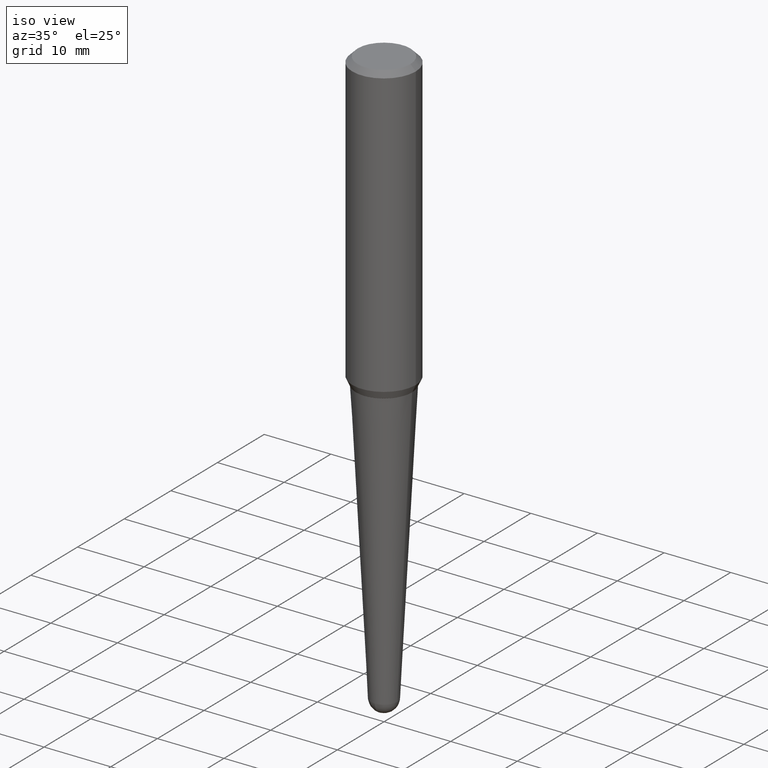
[diagram: clean part render]
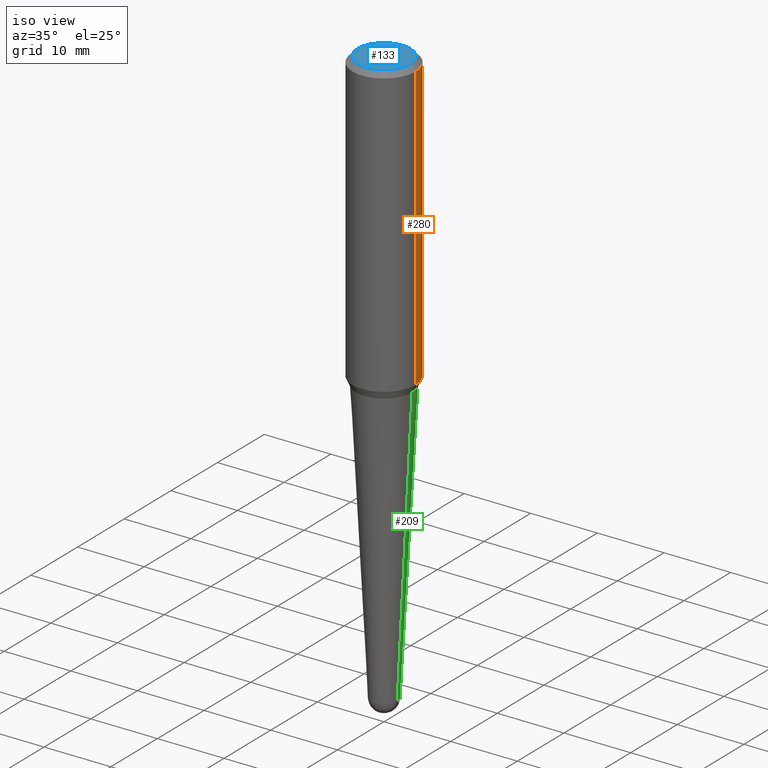
[diagram: same view with three faces highlighted in distinct colors, each labeled with its STEP entity id]
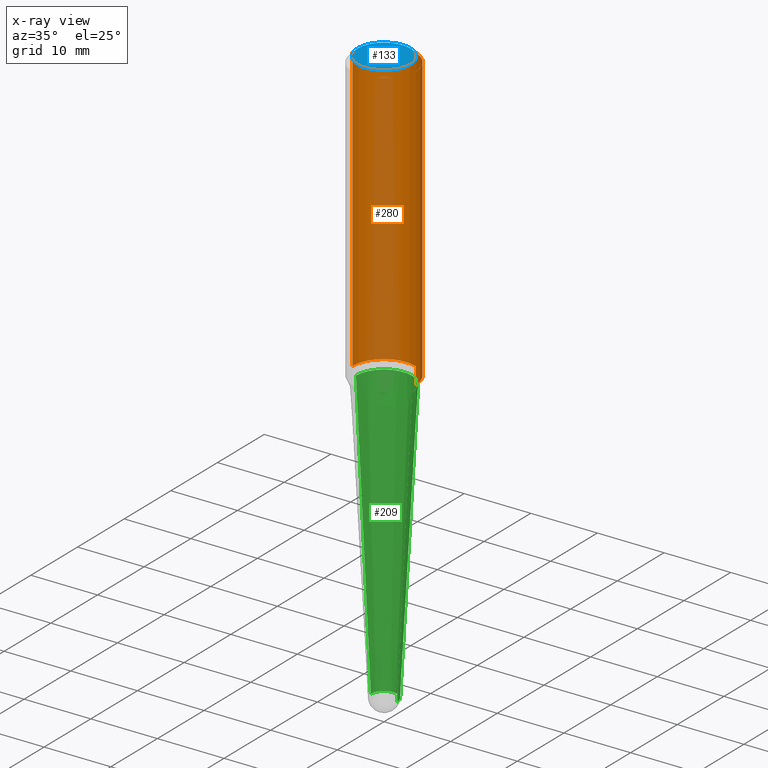
[diagram: x-ray of the same camera — body ghosted, the three highlighted faces saturated]
A machine part, iso view with three faces highlighted in distinct colors.
The next image is the same camera in x-ray (body ghosted, the three faces saturated) — at least one of them is partly hidden behind the body in this view.
Their STEP definitions:

[orange] entity #280 — the highlighted cylindrical surface (partial cylindrical patch) has radius 4.7625 mm, axis along (-0, 0, 1).
#1 = EDGE_LOOP ( 'NONE', ( #457, #412, #369, #55 ) ) ;
#6 = DIRECTION ( 'NONE',  ( -2.445468806185136877E-29, 3.491481338843145188E-15, 1.000000000000000000 ) ) ;
#18 = DIRECTION ( 'NONE',  ( -2.445468806185136597E-29, 3.491481338843145583E-15, 1.000000000000000000 ) ) ;
#19 = CARTESIAN_POINT ( 'NONE',  ( 7.642090019328561499E-31, -1.091087918388484350E-16, -0.03125000000000003469 ) ) ;
#22 = CARTESIAN_POINT ( 'NONE',  ( 4.169935664663897396E-29, -5.953562981677331975E-15, -1.705168209104609645 ) ) ;
#55 = ORIENTED_EDGE ( 'NONE', *, *, #74, .F. ) ;
#63 = VERTEX_POINT ( 'NONE', #114 ) ;
#74 = EDGE_CURVE ( 'NONE', #63, #264, #395, .T. ) ;
#88 = CYLINDRICAL_SURFACE ( 'NONE', #456, 0.1875000000000001110 ) ;
#112 = EDGE_CURVE ( 'NONE', #382, #454, #208, .T. ) ;
#114 = CARTESIAN_POINT ( 'NONE',  ( 0.1875000000000002220, -7.262868483743506194E-15, -1.705168209104609645 ) ) ;
#138 = CARTESIAN_POINT ( 'NONE',  ( 0.1875000000000001110, -1.309305502066173628E-15, 5.931196827434387479E-16 ) ) ;
#139 = CARTESIAN_POINT ( 'NONE',  ( -0.1874999999999999722, -1.699068257207900914E-15, -0.03125000000000003469 ) ) ;
#142 = VECTOR ( 'NONE', #6, 39.37007874015748143 ) ;
#143 = CIRCLE ( 'NONE', #317, 0.1874999999999999722 ) ;
#150 = AXIS2_PLACEMENT_3D ( 'NONE', #22, #18, #415 ) ;
#160 = DIRECTION ( 'NONE',  ( -2.445468806185136597E-29, 3.491481338843145583E-15, 1.000000000000000000 ) ) ;
#193 = CARTESIAN_POINT ( 'NONE',  ( 0.1874999999999999722, -1.418414293905023123E-15, -0.03125000000000003469 ) ) ;
#208 = LINE ( 'NONE', #251, #142 ) ;
#223 = EDGE_CURVE ( 'NONE', #63, #382, #247, .T. ) ;
#247 = CIRCLE ( 'NONE', #150, 0.1875000000000002220 ) ;
#251 = CARTESIAN_POINT ( 'NONE',  ( -0.1875000000000001110, 1.332267629550190807E-15, 5.931196827434205055E-16 ) ) ;
#264 = VERTEX_POINT ( 'NONE', #193 ) ;
#266 = EDGE_CURVE ( 'NONE', #264, #454, #143, .T. ) ;
#274 = FACE_OUTER_BOUND ( 'NONE', #1, .T. ) ;
#280 = ADVANCED_FACE ( 'NONE', ( #274 ), #88, .T. ) ;
#295 = DIRECTION ( 'NONE',  ( -2.445468806185136877E-29, 3.491481338843145188E-15, 1.000000000000000000 ) ) ;
#301 = DIRECTION ( 'NONE',  ( 1.000000000000000000, -6.982962677686266711E-15, 0.000000000000000000 ) ) ;
#313 = CARTESIAN_POINT ( 'NONE',  ( -0.1875000000000002220, -4.621295352127141759E-15, -1.705168209104609645 ) ) ;
#317 = AXIS2_PLACEMENT_3D ( 'NONE', #19, #455, #301 ) ;
#369 = ORIENTED_EDGE ( 'NONE', *, *, #266, .F. ) ;
#382 = VERTEX_POINT ( 'NONE', #313 ) ;
#383 = DIRECTION ( 'NONE',  ( 1.000000000000000000, -6.982962677686266711E-15, 4.852736867747363404E-29 ) ) ;
#395 = LINE ( 'NONE', #138, #446 ) ;
#412 = ORIENTED_EDGE ( 'NONE', *, *, #112, .T. ) ;
#415 = DIRECTION ( 'NONE',  ( 1.000000000000000000, -6.982962677686265133E-15, 0.000000000000000000 ) ) ;
#423 = CARTESIAN_POINT ( 'NONE',  ( -1.450455682483482035E-44, 2.070866303999251778E-30, 5.931196827434296760E-16 ) ) ;
#446 = VECTOR ( 'NONE', #295, 39.37007874015748143 ) ;
#454 = VERTEX_POINT ( 'NONE', #139 ) ;
#455 = DIRECTION ( 'NONE',  ( -2.445468806185136597E-29, 3.491481338843145583E-15, 1.000000000000000000 ) ) ;
#456 = AXIS2_PLACEMENT_3D ( 'NONE', #423, #160, #383 ) ;
#457 = ORIENTED_EDGE ( 'NONE', *, *, #223, .T. ) ;

[blue] entity #133 — the highlighted planar face has unit normal (0, -0, -1).
#10 = AXIS2_PLACEMENT_3D ( 'NONE', #118, #262, #418 ) ;
#35 = PLANE ( 'NONE',  #189 ) ;
#38 = CIRCLE ( 'NONE', #207, 0.1562500000000005829 ) ;
#81 = DIRECTION ( 'NONE',  ( -2.445468806185136597E-29, 3.491481338843145583E-15, 1.000000000000000000 ) ) ;
#108 = FACE_OUTER_BOUND ( 'NONE', #215, .T. ) ;
#118 = CARTESIAN_POINT ( 'NONE',  ( 1.794926649214104394E-44, -2.562679550224799417E-30, -7.339805949167432636E-16 ) ) ;
#133 = ADVANCED_FACE ( 'NONE', ( #108 ), #35, .F. ) ;
#151 = VERTEX_POINT ( 'NONE', #326 ) ;
#153 = ORIENTED_EDGE ( 'NONE', *, *, #245, .T. ) ;
#154 = CARTESIAN_POINT ( 'NONE',  ( 0.1562500000000005829, -1.233702489286409496E-15, -7.339805949167350791E-16 ) ) ;
#172 = DIRECTION ( 'NONE',  ( 2.438088387897960049E-29, -3.491481338843145188E-15, -1.000000000000000000 ) ) ;
#189 = AXIS2_PLACEMENT_3D ( 'NONE', #439, #172, #322 ) ;
#207 = AXIS2_PLACEMENT_3D ( 'NONE', #337, #81, #225 ) ;
#215 = EDGE_LOOP ( 'NONE', ( #459, #153 ) ) ;
#225 = DIRECTION ( 'NONE',  ( 1.000000000000000000, -6.982962677686267499E-15, 4.891558762689326218E-29 ) ) ;
#237 = CIRCLE ( 'NONE', #10, 0.1562500000000005829 ) ;
#245 = EDGE_CURVE ( 'NONE', #303, #151, #38, .T. ) ;
#262 = DIRECTION ( 'NONE',  ( -2.445468806185136597E-29, 3.491481338843145583E-15, 1.000000000000000000 ) ) ;
#303 = VERTEX_POINT ( 'NONE', #154 ) ;
#322 = DIRECTION ( 'NONE',  ( -1.000000000000000000, 6.982962677686265922E-15, -4.876176775795935793E-29 ) ) ;
#326 = CARTESIAN_POINT ( 'NONE',  ( -0.1562500000000005829, 1.145642314307903527E-15, -7.339805949167510536E-16 ) ) ;
#337 = CARTESIAN_POINT ( 'NONE',  ( 1.794926649214104394E-44, -2.562679550224799417E-30, -7.339805949167432636E-16 ) ) ;
#357 = EDGE_CURVE ( 'NONE', #151, #303, #237, .T. ) ;
#418 = DIRECTION ( 'NONE',  ( 1.000000000000000000, -6.982962677686267499E-15, 4.891558762689326218E-29 ) ) ;
#439 = CARTESIAN_POINT ( 'NONE',  ( 8.974633246070521971E-45, -1.281339775112399709E-30, -3.669902974583716318E-16 ) ) ;
#459 = ORIENTED_EDGE ( 'NONE', *, *, #357, .T. ) ;

[green] entity #209 — the highlighted conical surface has half-angle 3 deg.
#8 = CIRCLE ( 'NONE', #377, 0.07799296666433258585 ) ;
#12 = EDGE_CURVE ( 'NONE', #17, #121, #8, .T. ) ;
#17 = VERTEX_POINT ( 'NONE', #125 ) ;
#21 = CIRCLE ( 'NONE', #279, 0.07799296666433258585 ) ;
#23 = VECTOR ( 'NONE', #283, 39.37007874015748854 ) ;
#25 = CARTESIAN_POINT ( 'NONE',  ( 4.279570410823988484E-29, -6.110092342975504671E-15, -1.750000000000000000 ) ) ;
#29 = DIRECTION ( 'NONE',  ( 1.000000000000000000, -6.982962677686269866E-15, 0.000000000000000000 ) ) ;
#37 = DIRECTION ( 'NONE',  ( 1.000000000000000000, -6.982962677686269866E-15, 0.000000000000000000 ) ) ;
#43 = VERTEX_POINT ( 'NONE', #321 ) ;
#51 = DIRECTION ( 'NONE',  ( 0.05233595624294386239, 3.121236355867708811E-15, 0.9986295347545738332 ) ) ;
#97 = CARTESIAN_POINT ( 'NONE',  ( -0.1658277464057546224, -4.931815337014733979E-15, -1.750000000000000000 ) ) ;
#121 = VERTEX_POINT ( 'NONE', #434 ) ;
#125 = CARTESIAN_POINT ( 'NONE',  ( 5.446219753391471810E-16, 0.07799296666432059544, -3.425987438182573896 ) ) ;
#132 = CONICAL_SURFACE ( 'NONE', #155, 0.07799296666433258585, 0.05235987755982991071 ) ;
#145 = EDGE_CURVE ( 'NONE', #426, #17, #21, .T. ) ;
#155 = AXIS2_PLACEMENT_3D ( 'NONE', #328, #364, #37 ) ;
#158 = CARTESIAN_POINT ( 'NONE',  ( 0.07799296666433258585, -1.250639318286455540E-14, -3.425987438182573896 ) ) ;
#161 = CARTESIAN_POINT ( 'NONE',  ( 8.378145410457613452E-29, -1.196177120752549174E-14, -3.425987438182573896 ) ) ;
#165 = DIRECTION ( 'NONE',  ( 1.000000000000000000, -6.982962677686265922E-15, 0.000000000000000000 ) ) ;
#175 = FACE_OUTER_BOUND ( 'NONE', #431, .T. ) ;
#202 = DIRECTION ( 'NONE',  ( -2.445468806185136597E-29, 3.491481338843145583E-15, 1.000000000000000000 ) ) ;
#203 = CARTESIAN_POINT ( 'NONE',  ( 0.07799296666433258585, -9.887227244958132819E-15, -3.425987438182573896 ) ) ;
#209 = ADVANCED_FACE ( 'NONE', ( #175 ), #132, .T. ) ;
#211 = DIRECTION ( 'NONE',  ( 1.000000000000000000, -6.982962677686269866E-15, 0.000000000000000000 ) ) ;
#216 = EDGE_CURVE ( 'NONE', #426, #43, #310, .T. ) ;
#248 = DIRECTION ( 'NONE',  ( -2.445468806185136597E-29, 3.491481338843145583E-15, 1.000000000000000000 ) ) ;
#268 = AXIS2_PLACEMENT_3D ( 'NONE', #25, #248, #165 ) ;
#273 = ORIENTED_EDGE ( 'NONE', *, *, #12, .T. ) ;
#276 = ORIENTED_EDGE ( 'NONE', *, *, #216, .F. ) ;
#279 = AXIS2_PLACEMENT_3D ( 'NONE', #323, #399, #211 ) ;
#283 = DIRECTION ( 'NONE',  ( -0.05233595624294386239, 3.858565720288030357E-15, 0.9986295347545738332 ) ) ;
#310 = LINE ( 'NONE', #158, #405 ) ;
#318 = CARTESIAN_POINT ( 'NONE',  ( -0.07799296666433258585, -1.140759784848827963E-14, -3.425987438182573896 ) ) ;
#321 = CARTESIAN_POINT ( 'NONE',  ( 0.1658277464057546224, -7.268061307051711819E-15, -1.750000000000000000 ) ) ;
#323 = CARTESIAN_POINT ( 'NONE',  ( 8.378145410457613452E-29, -1.196177120752549174E-14, -3.425987438182573896 ) ) ;
#328 = CARTESIAN_POINT ( 'NONE',  ( 8.378145410457613452E-29, -1.196177120752549174E-14, -3.425987438182573896 ) ) ;
#331 = CIRCLE ( 'NONE', #268, 0.1658277464057546224 ) ;
#354 = LINE ( 'NONE', #318, #23 ) ;
#364 = DIRECTION ( 'NONE',  ( -2.445468806185136597E-29, 3.491481338843145583E-15, 1.000000000000000000 ) ) ;
#374 = ORIENTED_EDGE ( 'NONE', *, *, #433, .T. ) ;
#377 = AXIS2_PLACEMENT_3D ( 'NONE', #161, #202, #29 ) ;
#379 = EDGE_CURVE ( 'NONE', #43, #408, #331, .T. ) ;
#399 = DIRECTION ( 'NONE',  ( -2.445468806185136597E-29, 3.491481338843145583E-15, 1.000000000000000000 ) ) ;
#404 = ORIENTED_EDGE ( 'NONE', *, *, #379, .F. ) ;
#405 = VECTOR ( 'NONE', #51, 39.37007874015748854 ) ;
#408 = VERTEX_POINT ( 'NONE', #97 ) ;
#419 = ORIENTED_EDGE ( 'NONE', *, *, #145, .T. ) ;
#426 = VERTEX_POINT ( 'NONE', #203 ) ;
#431 = EDGE_LOOP ( 'NONE', ( #273, #374, #404, #276, #419 ) ) ;
#433 = EDGE_CURVE ( 'NONE', #121, #408, #354, .T. ) ;
#434 = CARTESIAN_POINT ( 'NONE',  ( -0.07799296666433258585, -8.169706592751506412E-15, -3.425987438182573896 ) ) ;